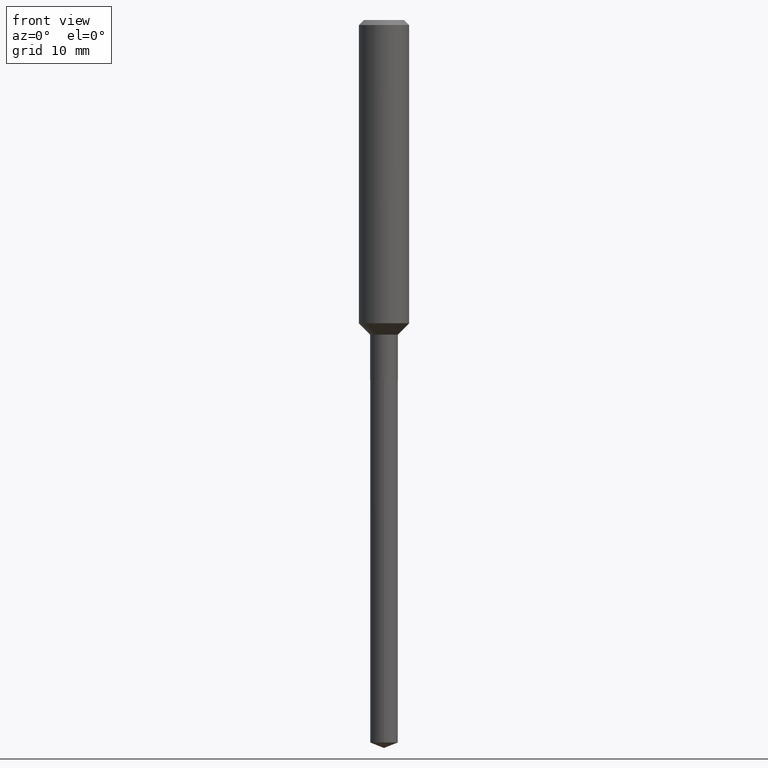
[diagram: clean part render]
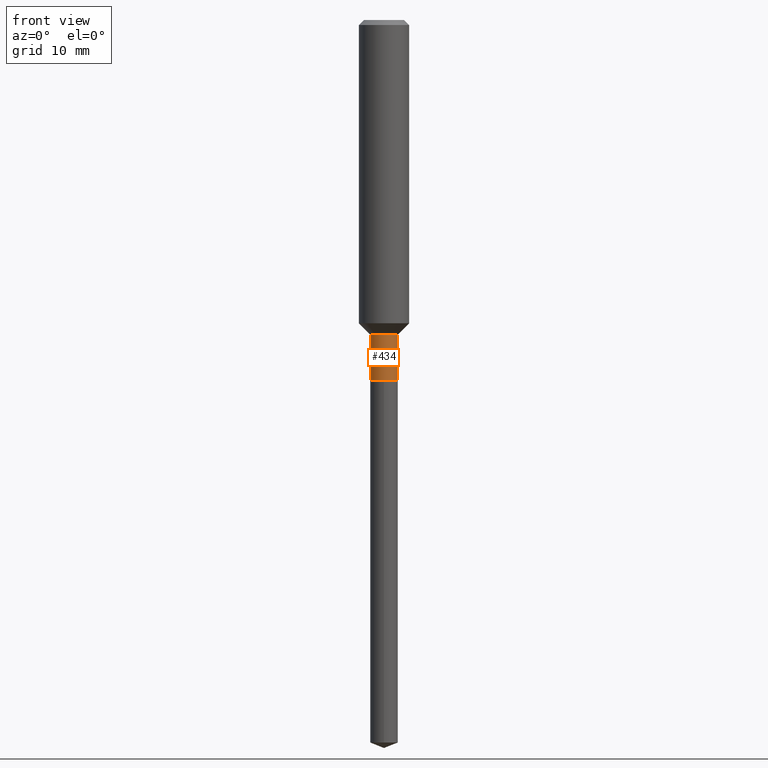
[diagram: same view with one face highlighted and labeled with its STEP entity id]
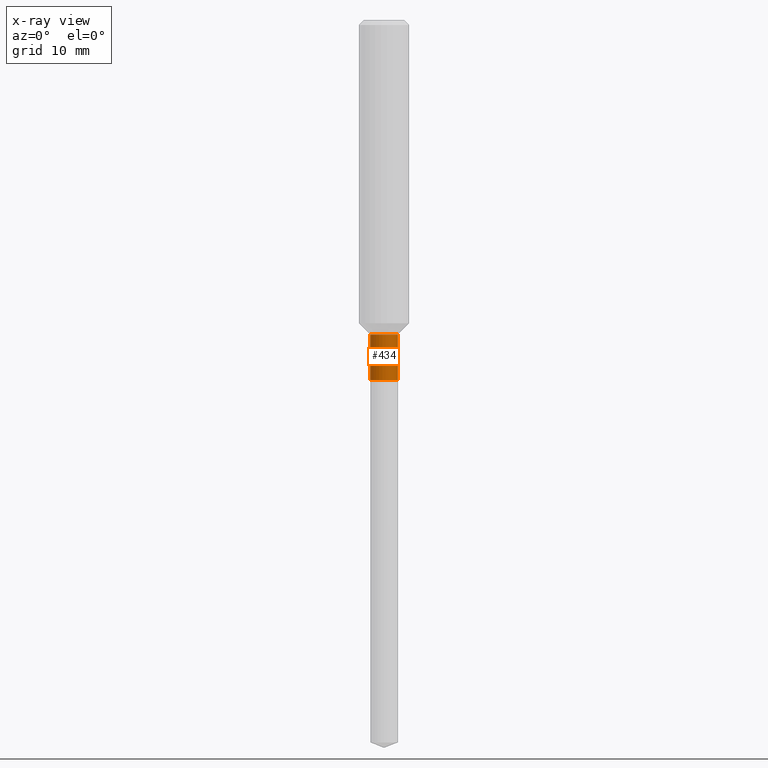
[diagram: x-ray of the same camera — body ghosted, the highlighted face saturated]
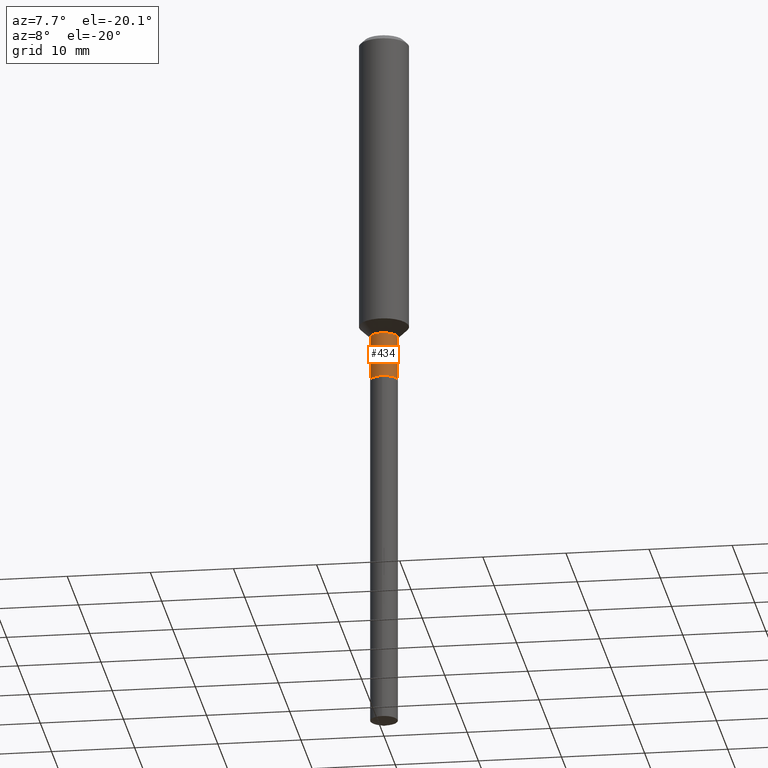
[diagram: same view with one face highlighted and labeled with its STEP entity id]
A machine part, front view. The second image highlights one B-rep face of the part: STEP entity #434.
The next image is the same camera in x-ray: the body ghosted, the highlighted face saturated — about 0% of this face is hidden behind the body in this view.
A second angle (auxiliary view) of the same face is appended — the face is thin or edge-on in the first view.
In plain terms, the highlighted cylindrical surface (edge-blend (fillet) strip) has radius 1.6497 mm, axis along (-0, 0, 1).
Its self-contained STEP definition (entity closure, byte-faithful):
#5 = AXIS2_PLACEMENT_3D ( 'NONE', #22, #175, #176 ) ;
#9 = EDGE_CURVE ( 'NONE', #395, #484, #463, .T. ) ;
#22 = CARTESIAN_POINT ( 'NONE',  ( 3.610734692332353876E-29, -5.155172196801902776E-15, -1.476499999999999702 ) ) ;
#45 = VECTOR ( 'NONE', #271, 39.37007874015748143 ) ;
#64 = DIRECTION ( 'NONE',  ( 1.000000000000000000, -6.982962677686268288E-15, 0.000000000000000000 ) ) ;
#79 = CARTESIAN_POINT ( 'NONE',  ( -0.06494999999999997997, 4.614975068761849284E-16, -3.194848341120560204E-30 ) ) ;
#89 = VERTEX_POINT ( 'NONE', #195 ) ;
#92 = EDGE_CURVE ( 'NONE', #484, #89, #305, .T. ) ;
#117 = EDGE_CURVE ( 'NONE', #395, #372, #197, .T. ) ;
#133 = EDGE_LOOP ( 'NONE', ( #324, #374, #215, #145 ) ) ;
#143 = DIRECTION ( 'NONE',  ( -2.445468806185136597E-29, 3.491481338843145583E-15, 1.000000000000000000 ) ) ;
#145 = ORIENTED_EDGE ( 'NONE', *, *, #330, .F. ) ;
#146 = FACE_OUTER_BOUND ( 'NONE', #133, .T. ) ;
#164 = VECTOR ( 'NONE', #420, 39.37007874015748143 ) ;
#175 = DIRECTION ( 'NONE',  ( -2.445468806185136597E-29, 3.491481338843145583E-15, 1.000000000000000000 ) ) ;
#176 = DIRECTION ( 'NONE',  ( 1.000000000000000000, -6.982962677686271444E-15, 0.000000000000000000 ) ) ;
#195 = CARTESIAN_POINT ( 'NONE',  ( 0.06494999999999996609, -5.608715622717625969E-15, -1.476499999999999702 ) ) ;
#197 = LINE ( 'NONE', #79, #45 ) ;
#208 = AXIS2_PLACEMENT_3D ( 'NONE', #407, #143, #373 ) ;
#215 = ORIENTED_EDGE ( 'NONE', *, *, #92, .T. ) ;
#252 = AXIS2_PLACEMENT_3D ( 'NONE', #268, #487, #64 ) ;
#268 = CARTESIAN_POINT ( 'NONE',  ( 4.133086829333499117E-29, -5.900952610778799866E-15, -1.690099999999999714 ) ) ;
#271 = DIRECTION ( 'NONE',  ( -2.445468806185136877E-29, 3.491481338843145188E-15, 1.000000000000000000 ) ) ;
#295 = CYLINDRICAL_SURFACE ( 'NONE', #208, 0.06494999999999997997 ) ;
#305 = LINE ( 'NONE', #388, #164 ) ;
#324 = ORIENTED_EDGE ( 'NONE', *, *, #117, .F. ) ;
#330 = EDGE_CURVE ( 'NONE', #372, #89, #443, .T. ) ;
#372 = VERTEX_POINT ( 'NONE', #379 ) ;
#373 = DIRECTION ( 'NONE',  ( 1.000000000000000000, -6.982962677686266711E-15, 4.876176775795935232E-29 ) ) ;
#374 = ORIENTED_EDGE ( 'NONE', *, *, #9, .T. ) ;
#379 = CARTESIAN_POINT ( 'NONE',  ( -0.06494999999999996609, -5.066564896914166984E-15, -1.476499999999999702 ) ) ;
#388 = CARTESIAN_POINT ( 'NONE',  ( 0.06494999999999997997, -4.535434259157228974E-16, 3.167076815879459014E-30 ) ) ;
#395 = VERTEX_POINT ( 'NONE', #481 ) ;
#407 = CARTESIAN_POINT ( 'NONE',  ( 0.000000000000000000, 0.000000000000000000, 0.000000000000000000 ) ) ;
#420 = DIRECTION ( 'NONE',  ( -2.445468806185136877E-29, 3.491481338843145188E-15, 1.000000000000000000 ) ) ;
#434 = ADVANCED_FACE ( 'NONE', ( #146 ), #295, .T. ) ;
#443 = CIRCLE ( 'NONE', #5, 0.06494999999999996609 ) ;
#448 = CARTESIAN_POINT ( 'NONE',  ( 0.06494999999999999385, -6.354496036694523059E-15, -1.690099999999999714 ) ) ;
#463 = CIRCLE ( 'NONE', #252, 0.06494999999999999385 ) ;
#481 = CARTESIAN_POINT ( 'NONE',  ( -0.06494999999999999385, -5.066564896914166984E-15, -1.690099999999999714 ) ) ;
#484 = VERTEX_POINT ( 'NONE', #448 ) ;
#487 = DIRECTION ( 'NONE',  ( -2.445468806185136597E-29, 3.491481338843145583E-15, 1.000000000000000000 ) ) ;